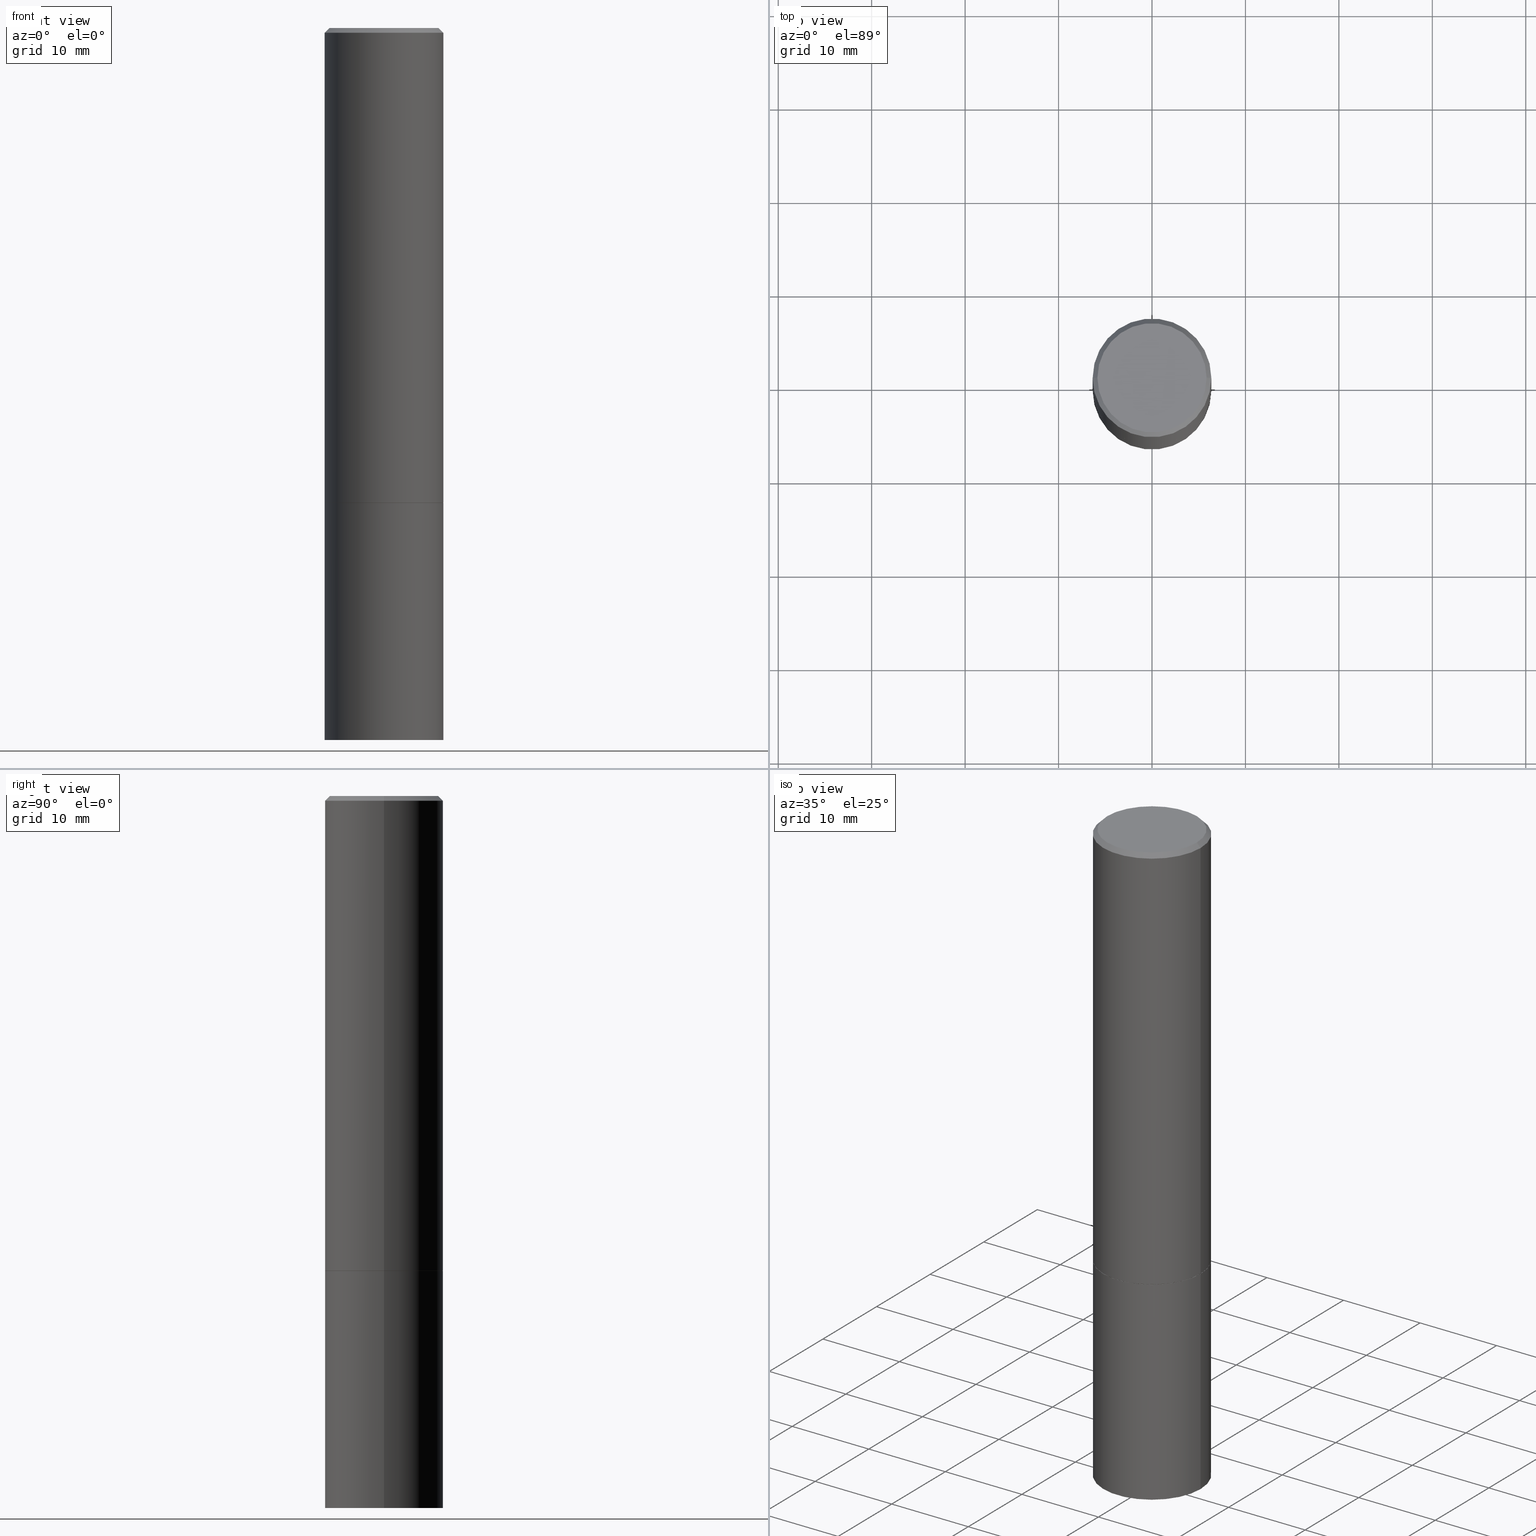
[diagram: canonical four-view strip — front | top / right | iso, engineering-drawing reading convention]
A machine part, canonical four-view strip (front | top / right | iso — engineering-drawing reading convention). The complete STEP part file that produces these views, byte-faithful:
ISO-10303-21;
HEADER;
FILE_DESCRIPTION (( 'STEP AP203' ),
    '1' );
FILE_NAME ('37036.STEP',
    '2024-02-27T20:16:14',
    ( '' ),
    ( '' ),
    'SwSTEP 2.0',
    'SolidWorks 2023',
    '' );
FILE_SCHEMA (( 'CONFIG_CONTROL_DESIGN' ));
ENDSEC;

DATA;
#1 = DATE_AND_TIME ( #139, #181 ) ;
#2 = EDGE_LOOP ( 'NONE', ( #289, #140, #249, #79 ) ) ;
#3 = CIRCLE ( 'NONE', #179, 0.2489999999999999991 ) ;
#4 = VERTEX_POINT ( 'NONE', #348 ) ;
#5 = CC_DESIGN_APPROVAL ( #56, ( #206 ) ) ;
#6 = ORIENTED_EDGE ( 'NONE', *, *, #43, .F. ) ;
#7 = ORIENTED_EDGE ( 'NONE', *, *, #291, .F. ) ;
#8 = EDGE_CURVE ( 'NONE', #4, #251, #41, .T. ) ;
#9 = EDGE_LOOP ( 'NONE', ( #346, #229 ) ) ;
#10 = DIRECTION ( 'NONE',  ( -2.445468806185136597E-29, 3.491481338843145583E-15, 1.000000000000000000 ) ) ;
#11 = EDGE_CURVE ( 'NONE', #251, #4, #3, .T. ) ;
#12 = CARTESIAN_POINT ( 'NONE',  ( -0.2299999999999996769, 1.640996229256270350E-15, 8.537024980189468815E-18 ) ) ;
#13 = EDGE_CURVE ( 'NONE', #311, #54, #95, .T. ) ;
#14 = CYLINDRICAL_SURFACE ( 'NONE', #127, 0.2499999999999998335 ) ;
#15 = AXIS2_PLACEMENT_3D ( 'NONE', #357, #148, #123 ) ;
#16 = LOCAL_TIME ( 15, 16, 14.00000000000000000, #246 ) ;
#17 = COORDINATED_UNIVERSAL_TIME_OFFSET ( 5, 0, .BEHIND. ) ;
#18 = DIRECTION ( 'NONE',  ( -0.7071067811865232589, 7.493145998870265808E-15, 0.7071067811865715536 ) ) ;
#19 = PERSON_AND_ORGANIZATION_ROLE ( 'classification_officer' ) ;
#20 = EDGE_CURVE ( 'NONE', #278, #284, #230, .T. ) ;
#21 = ORIENTED_EDGE ( 'NONE', *, *, #291, .T. ) ;
#22 = APPROVAL_ROLE ( '' ) ;
#23 = EDGE_LOOP ( 'NONE', ( #7, #143 ) ) ;
#24 = PERSON_AND_ORGANIZATION_ROLE ( 'design_supplier' ) ;
#25 = ORIENTED_EDGE ( 'NONE', *, *, #30, .F. ) ;
#26 = LINE ( 'NONE', #98, #207 ) ;
#27 =( GEOMETRIC_REPRESENTATION_CONTEXT ( 3 ) GLOBAL_UNCERTAINTY_ASSIGNED_CONTEXT ( ( #339 ) ) GLOBAL_UNIT_ASSIGNED_CONTEXT ( ( #263, #334, #247 ) ) REPRESENTATION_CONTEXT ( 'NONE', 'WORKASPACE' ) );
#28 = ORIENTED_EDGE ( 'NONE', *, *, #20, .F. ) ;
#29 = VERTEX_POINT ( 'NONE', #260 ) ;
#30 = EDGE_CURVE ( 'NONE', #311, #49, #39, .T. ) ;
#31 = EDGE_LOOP ( 'NONE', ( #25, #163, #231, #47 ) ) ;
#32 = AXIS2_PLACEMENT_3D ( 'NONE', #87, #293, #33 ) ;
#33 = DIRECTION ( 'NONE',  ( -1.000000000000000000, 6.982962677686265922E-15, -4.876176775795935793E-29 ) ) ;
#34 = DIRECTION ( 'NONE',  ( 1.000000000000000000, -6.982962677686266711E-15, 0.000000000000000000 ) ) ;
#35 = CARTESIAN_POINT ( 'NONE',  ( 0.2489999999999999991, -8.721720384430172617E-15, -2.000000000000000444 ) ) ;
#36 = FACE_OUTER_BOUND ( 'NONE', #142, .T. ) ;
#37 = EDGE_CURVE ( 'NONE', #144, #54, #113, .T. ) ;
#38 = DIRECTION ( 'NONE',  ( 1.000000000000000000, -6.982962677686266711E-15, 0.000000000000000000 ) ) ;
#39 = CIRCLE ( 'NONE', #161, 0.2299999999999996769 ) ;
#40 = DATE_AND_TIME ( #305, #202 ) ;
#41 = CIRCLE ( 'NONE', #252, 0.2489999999999999991 ) ;
#42 = FACE_OUTER_BOUND ( 'NONE', #170, .T. ) ;
#43 = EDGE_CURVE ( 'NONE', #166, #138, #126, .T. ) ;
#44 = APPROVAL_STATUS ( 'not_yet_approved' ) ;
#45 = COORDINATED_UNIVERSAL_TIME_OFFSET ( 5, 0, .BEHIND. ) ;
#46 = PERSON_AND_ORGANIZATION_ROLE ( 'design_owner' ) ;
#47 = ORIENTED_EDGE ( 'NONE', *, *, #273, .F. ) ;
#48 = DIMENSIONAL_EXPONENTS ( 1.000000000000000000, 0.000000000000000000, 0.000000000000000000, 0.000000000000000000, 0.000000000000000000, 0.000000000000000000, 0.000000000000000000 ) ;
#49 = VERTEX_POINT ( 'NONE', #12 ) ;
#50 = CARTESIAN_POINT ( 'NONE',  ( -2.087702828670439639E-46, 2.980686340760894400E-32, 8.537024980200822558E-18 ) ) ;
#51 = EDGE_LOOP ( 'NONE', ( #21, #115, #343, #313 ) ) ;
#52 = LOCAL_TIME ( 15, 16, 14.00000000000000000, #280 ) ;
#53 = ORIENTED_EDGE ( 'NONE', *, *, #149, .T. ) ;
#54 = VERTEX_POINT ( 'NONE', #116 ) ;
#55 = CYLINDRICAL_SURFACE ( 'NONE', #172, 0.2500000000000000000 ) ;
#56 = APPROVAL ( #164, 'UNSPECIFIED' ) ;
#57 = DIRECTION ( 'NONE',  ( -2.445468806185136597E-29, 3.491481338843145583E-15, 1.000000000000000000 ) ) ;
#58 = AXIS2_PLACEMENT_3D ( 'NONE', #180, #60, #174 ) ;
#59 = AXIS2_PLACEMENT_3D ( 'NONE', #50, #167, #285 ) ;
#60 = DIRECTION ( 'NONE',  ( -2.445468806185136597E-29, 3.491481338843145583E-15, 1.000000000000000000 ) ) ;
#61 = DIRECTION ( 'NONE',  ( -2.445468806185136597E-29, 3.491481338843145583E-15, 1.000000000000000000 ) ) ;
#62 = DIRECTION ( 'NONE',  ( 0.7071067811865466846, -7.319954787623252890E-15, -0.7071067811865483499 ) ) ;
#63 = CONICAL_SURFACE ( 'NONE', #88, 0.2499999999999996669, 0.7853981633974471688 ) ;
#64 = ADVANCED_FACE ( 'NONE', ( #208 ), #63, .T. ) ;
#65 = VECTOR ( 'NONE', #92, 39.37007874015748143 ) ;
#66 = CARTESIAN_POINT ( 'NONE',  ( 0.000000000000000000, 0.000000000000000000, 0.000000000000000000 ) ) ;
#67 = CARTESIAN_POINT ( 'NONE',  ( -0.2500000000000000000, -6.952346507707613689E-15, -2.000000000000000444 ) ) ;
#68 = DIRECTION ( 'NONE',  ( 1.000000000000000000, -6.982962677686266711E-15, 4.876176775795935793E-29 ) ) ;
#69 = CARTESIAN_POINT ( 'NONE',  ( -0.2489999999999999991, -5.213711265643642498E-15, -2.000000000000000444 ) ) ;
#70 = LENGTH_MEASURE_WITH_UNIT ( LENGTH_MEASURE( 0.02539999999999999897 ), #147 );
#71 = ADVANCED_FACE ( 'NONE', ( #122 ), #352, .T. ) ;
#72 = MECHANICAL_CONTEXT ( 'NONE', #196, 'mechanical' ) ;
#73 = ORGANIZATION ( 'UNSPECIFIED', 'UNSPECIFIED', '' ) ;
#74 = DATE_TIME_ROLE ( 'classification_date' ) ;
#75 = DIRECTION ( 'NONE',  ( 1.000000000000000000, -6.982962677686262766E-15, 0.000000000000000000 ) ) ;
#76 = ORIENTED_EDGE ( 'NONE', *, *, #248, .F. ) ;
#77 = PERSON_AND_ORGANIZATION ( #82, #73 ) ;
#78 = ADVANCED_FACE ( 'NONE', ( #205 ), #204, .F. ) ;
#79 = ORIENTED_EDGE ( 'NONE', *, *, #136, .F. ) ;
#80 = APPLICATION_PROTOCOL_DEFINITION ( 'international standard', 'config_control_design', 1994, #196 ) ;
#81 = VERTEX_POINT ( 'NONE', #350 ) ;
#82 = PERSON ( 'UNSPECIFIED', 'UNSPECIFIED', 'UNSPECIFIED', ('UNSPECIFIED'), ('UNSPECIFIED'), ('UNSPECIFIED') ) ;
#83 = ADVANCED_FACE ( 'NONE', ( #146 ), #55, .T. ) ;
#84 = ORIENTED_EDGE ( 'NONE', *, *, #37, .F. ) ;
#85 = CARTESIAN_POINT ( 'NONE',  ( 4.890937612370273754E-29, -6.982962677686291954E-15, -2.000000000000000444 ) ) ;
#86 = CARTESIAN_POINT ( 'NONE',  ( -2.087702828670439639E-46, 2.980686340760894400E-32, 8.537024980200822558E-18 ) ) ;
#87 = CARTESIAN_POINT ( 'NONE',  ( 1.606081415867838898E-15, 0.2299999999999996769, -7.987721954438218819E-16 ) ) ;
#88 = AXIS2_PLACEMENT_3D ( 'NONE', #89, #173, #268 ) ;
#89 = CARTESIAN_POINT ( 'NONE',  ( 4.890937612370281041E-31, -6.982962677686302702E-17, -0.02000000000000003511 ) ) ;
#90 = AXIS2_PLACEMENT_3D ( 'NONE', #176, #94, #68 ) ;
#91 = VECTOR ( 'NONE', #337, 39.37007874015748143 ) ;
#92 = DIRECTION ( 'NONE',  ( -2.445468806185136877E-29, 3.491481338843145188E-15, 1.000000000000000000 ) ) ;
#93 = DIRECTION ( 'NONE',  ( -2.445468806185136597E-29, 3.491481338843145583E-15, 1.000000000000000000 ) ) ;
#94 = DIRECTION ( 'NONE',  ( -2.445468806185136597E-29, 3.491481338843145583E-15, 1.000000000000000000 ) ) ;
#95 = LINE ( 'NONE', #235, #133 ) ;
#96 = EDGE_CURVE ( 'NONE', #138, #166, #342, .T. ) ;
#97 = MANIFOLD_SOLID_BREP ( 'Body-Move/Copy2[2]', #217 ) ;
#98 = CARTESIAN_POINT ( 'NONE',  ( -0.2499999999999996669, 1.675911042644701210E-15, -0.02000000000000003511 ) ) ;
#99 = DIRECTION ( 'NONE',  ( 2.445468806185136597E-29, -3.491481338843145583E-15, -1.000000000000000000 ) ) ;
#100 = LINE ( 'NONE', #244, #225 ) ;
#101 = PLANE ( 'NONE',  #254 ) ;
#102 = AXIS2_PLACEMENT_3D ( 'NONE', #242, #335, #75 ) ;
#103 = CARTESIAN_POINT ( 'NONE',  ( -0.2499999999999998335, 1.776356839400249281E-15, -1.229733772563725605E-29 ) ) ;
#104 = APPROVAL_ROLE ( '' ) ;
#105 = PERSON_AND_ORGANIZATION_ROLE ( 'creator' ) ;
#106 = EDGE_LOOP ( 'NONE', ( #286, #257 ) ) ;
#107 = DATE_AND_TIME ( #137, #52 ) ;
#108 = CIRCLE ( 'NONE', #154, 0.2500000000000000000 ) ;
#109 = AXIS2_PLACEMENT_3D ( 'NONE', #358, #209, #120 ) ;
#110 = EDGE_LOOP ( 'NONE', ( #199, #227, #258, #28 ) ) ;
#111 = ORIENTED_EDGE ( 'NONE', *, *, #20, .T. ) ;
#112 = ORIENTED_EDGE ( 'NONE', *, *, #160, .F. ) ;
#113 = CIRCLE ( 'NONE', #292, 0.2499999999999996669 ) ;
#114 = LOCAL_TIME ( 15, 16, 14.00000000000000000, #17 ) ;
#115 = ORIENTED_EDGE ( 'NONE', *, *, #233, .T. ) ;
#116 = CARTESIAN_POINT ( 'NONE',  ( 0.2499999999999996669, -1.784954126219743428E-15, -0.02000000000000003511 ) ) ;
#117 = DIRECTION ( 'NONE',  ( 1.000000000000000000, -6.982962677686266711E-15, 4.876176775795935793E-29 ) ) ;
#118 = CARTESIAN_POINT ( 'NONE',  ( 4.890937612370281041E-31, -6.982962677686302702E-17, -0.02000000000000003511 ) ) ;
#119 = CC_DESIGN_SECURITY_CLASSIFICATION ( #298, ( #141 ) ) ;
#120 = DIRECTION ( 'NONE',  ( 1.000000000000000000, -6.982962677686262766E-15, 0.000000000000000000 ) ) ;
#121 = APPROVAL ( #44, 'UNSPECIFIED' ) ;
#122 = FACE_OUTER_BOUND ( 'NONE', #23, .T. ) ;
#123 = DIRECTION ( 'NONE',  ( 1.000000000000000000, -6.982962677686266711E-15, 0.000000000000000000 ) ) ;
#124 = DIRECTION ( 'NONE',  ( -2.445468806185136597E-29, 3.491481338843145583E-15, 1.000000000000000000 ) ) ;
#125 = DIRECTION ( 'NONE',  ( 2.438088387897960049E-29, -3.491481338843145188E-15, -1.000000000000000000 ) ) ;
#126 = CIRCLE ( 'NONE', #194, 0.2500000000000000000 ) ;
#127 = AXIS2_PLACEMENT_3D ( 'NONE', #66, #183, #356 ) ;
#128 = FACE_OUTER_BOUND ( 'NONE', #200, .T. ) ;
#129 = CARTESIAN_POINT ( 'NONE',  ( -0.2500000000000000000, -1.748293572161902502E-15, -1.999000000000000110 ) ) ;
#130 = DATE_AND_TIME ( #157, #114 ) ;
#131 = DIRECTION ( 'NONE',  ( -2.445468806185136877E-29, 3.491481338843145188E-15, 1.000000000000000000 ) ) ;
#132 = PERSON_AND_ORGANIZATION ( #82, #73 ) ;
#133 = VECTOR ( 'NONE', #62, 39.37007874015748143 ) ;
#134 = PERSON_AND_ORGANIZATION ( #82, #73 ) ;
#135 = CIRCLE ( 'NONE', #327, 0.2499999999999996669 ) ;
#136 = EDGE_CURVE ( 'NONE', #251, #138, #299, .T. ) ;
#137 = CALENDAR_DATE ( 2024, 27, 2 ) ;
#138 = VERTEX_POINT ( 'NONE', #331 ) ;
#139 = CALENDAR_DATE ( 2024, 27, 2 ) ;
#140 = ORIENTED_EDGE ( 'NONE', *, *, #160, .T. ) ;
#141 = PRODUCT_DEFINITION_FORMATION_WITH_SPECIFIED_SOURCE ( 'ANY', '', #277, .NOT_KNOWN. ) ;
#142 = EDGE_LOOP ( 'NONE', ( #315, #255, #308, #76 ) ) ;
#143 = ORIENTED_EDGE ( 'NONE', *, *, #228, .F. ) ;
#144 = VERTEX_POINT ( 'NONE', #360 ) ;
#145 = DIRECTION ( 'NONE',  ( -2.445468806185136597E-29, 3.491481338843145583E-15, 1.000000000000000000 ) ) ;
#146 = FACE_OUTER_BOUND ( 'NONE', #110, .T. ) ;
#147 =( LENGTH_UNIT ( ) NAMED_UNIT ( * ) SI_UNIT ( $, .METRE. ) );
#148 = DIRECTION ( 'NONE',  ( -2.445468806185136597E-29, 3.491481338843145583E-15, 1.000000000000000000 ) ) ;
#149 = EDGE_CURVE ( 'NONE', #284, #278, #108, .T. ) ;
#150 = CONICAL_SURFACE ( 'NONE', #214, 0.2499999999999996669, 0.7853981633974471688 ) ;
#151 = DIRECTION ( 'NONE',  ( -2.445468806185136597E-29, 3.491481338843145583E-15, 1.000000000000000000 ) ) ;
#152 = CARTESIAN_POINT ( 'NONE',  ( 4.888492143564088712E-29, -6.979471196347448158E-15, -1.999000000000000110 ) ) ;
#153 = CARTESIAN_POINT ( 'NONE',  ( 4.890937612370273754E-29, -6.982962677686291954E-15, -2.000000000000000444 ) ) ;
#154 = AXIS2_PLACEMENT_3D ( 'NONE', #186, #245, #304 ) ;
#155 = APPROVAL_DATE_TIME ( #1, #56 ) ;
#156 = LINE ( 'NONE', #69, #265 ) ;
#157 = CALENDAR_DATE ( 2024, 27, 2 ) ;
#158 = PRODUCT_DEFINITION_SHAPE ( 'NONE', 'NONE',  #206 ) ;
#159 = PERSON_AND_ORGANIZATION ( #82, #73 ) ;
#160 = EDGE_CURVE ( 'NONE', #4, #166, #156, .T. ) ;
#161 = AXIS2_PLACEMENT_3D ( 'NONE', #86, #93, #321 ) ;
#162 = COORDINATED_UNIVERSAL_TIME_OFFSET ( 5, 0, .BEHIND. ) ;
#163 = ORIENTED_EDGE ( 'NONE', *, *, #13, .T. ) ;
#164 = APPROVAL_STATUS ( 'not_yet_approved' ) ;
#165 = CC_DESIGN_DATE_AND_TIME_ASSIGNMENT ( #250, #74, ( #298 ) ) ;
#166 = VERTEX_POINT ( 'NONE', #129 ) ;
#167 = DIRECTION ( 'NONE',  ( -2.445468806185136597E-29, 3.491481338843145583E-15, 1.000000000000000000 ) ) ;
#168 = ORIENTED_EDGE ( 'NONE', *, *, #273, .T. ) ;
#169 = ORIENTED_EDGE ( 'NONE', *, *, #13, .F. ) ;
#170 = EDGE_LOOP ( 'NONE', ( #53, #111 ) ) ;
#171 = CARTESIAN_POINT ( 'NONE',  ( 0.000000000000000000, 0.000000000000000000, 0.000000000000000000 ) ) ;
#172 = AXIS2_PLACEMENT_3D ( 'NONE', #171, #262, #319 ) ;
#173 = DIRECTION ( 'NONE',  ( 2.445468806185136597E-29, -3.491481338843145583E-15, -1.000000000000000000 ) ) ;
#174 = DIRECTION ( 'NONE',  ( 1.000000000000000000, -6.982962677686266711E-15, 0.000000000000000000 ) ) ;
#175 = ADVANCED_FACE ( 'NONE', ( #42 ), #101, .F. ) ;
#176 = CARTESIAN_POINT ( 'NONE',  ( 0.000000000000000000, 0.000000000000000000, 0.000000000000000000 ) ) ;
#177 = DIRECTION ( 'NONE',  ( 1.000000000000000000, -6.982962677686266711E-15, 0.000000000000000000 ) ) ;
#178 = CYLINDRICAL_SURFACE ( 'NONE', #90, 0.2499999999999998335 ) ;
#179 = AXIS2_PLACEMENT_3D ( 'NONE', #355, #10, #294 ) ;
#180 = CARTESIAN_POINT ( 'NONE',  ( 4.888492143564088712E-29, -6.979471196347448158E-15, -1.999000000000000110 ) ) ;
#181 = LOCAL_TIME ( 15, 16, 14.00000000000000000, #162 ) ;
#182 = ADVANCED_BREP_SHAPE_REPRESENTATION ( '37036', ( #234, #97, #365 ), #27 ) ;
#183 = DIRECTION ( 'NONE',  ( -2.445468806185136597E-29, 3.491481338843145583E-15, 1.000000000000000000 ) ) ;
#184 = LINE ( 'NONE', #301, #65 ) ;
#185 = DIRECTION ( 'NONE',  ( -2.445468806185136597E-29, 3.491481338843145583E-15, 1.000000000000000000 ) ) ;
#186 = CARTESIAN_POINT ( 'NONE',  ( 4.890937612370273754E-29, -6.982962677686291954E-15, -2.000000000000000444 ) ) ;
#187 = CARTESIAN_POINT ( 'NONE',  ( 4.890937612370281041E-31, -6.982962677686302702E-17, -0.02000000000000003511 ) ) ;
#188 = AXIS2_PLACEMENT_3D ( 'NONE', #326, #237, #320 ) ;
#189 = PERSON_AND_ORGANIZATION ( #82, #73 ) ;
#190 = EDGE_CURVE ( 'NONE', #166, #144, #328, .T. ) ;
#191 = CARTESIAN_POINT ( 'NONE',  ( 0.2489999999999999991, -8.721720384430172617E-15, -2.000000000000000444 ) ) ;
#192 = APPROVAL_DATE_TIME ( #107, #198 ) ;
#193 = EDGE_LOOP ( 'NONE', ( #223, #203, #312, #84 ) ) ;
#194 = AXIS2_PLACEMENT_3D ( 'NONE', #152, #57, #177 ) ;
#195 = APPROVAL_DATE_TIME ( #130, #121 ) ;
#196 = APPLICATION_CONTEXT ( 'configuration controlled 3d designs of mechanical parts and assemblies' ) ;
#197 = VECTOR ( 'NONE', #131, 39.37007874015748143 ) ;
#198 = APPROVAL ( #279, 'UNSPECIFIED' ) ;
#199 = ORIENTED_EDGE ( 'NONE', *, *, #233, .F. ) ;
#200 = EDGE_LOOP ( 'NONE', ( #169, #282, #168, #290 ) ) ;
#201 = EDGE_LOOP ( 'NONE', ( #112, #347, #226, #6 ) ) ;
#202 = LOCAL_TIME ( 15, 16, 14.00000000000000000, #45 ) ;
#203 = ORIENTED_EDGE ( 'NONE', *, *, #43, .T. ) ;
#204 = PLANE ( 'NONE',  #32 ) ;
#205 = FACE_OUTER_BOUND ( 'NONE', #9, .T. ) ;
#206 = PRODUCT_DEFINITION ( 'UNKNOWN', '', #141, #323 ) ;
#207 = VECTOR ( 'NONE', #213, 39.37007874015748143 ) ;
#208 = FACE_OUTER_BOUND ( 'NONE', #31, .T. ) ;
#209 = DIRECTION ( 'NONE',  ( -2.445468806185136597E-29, 3.491481338843145583E-15, 1.000000000000000000 ) ) ;
#210 = FACE_OUTER_BOUND ( 'NONE', #201, .T. ) ;
#211 = CARTESIAN_POINT ( 'NONE',  ( 1.745740669421639647E-15, 0.2499999999999895084, -3.000000000000001332 ) ) ;
#212 = PLANE ( 'NONE',  #188 ) ;
#213 = DIRECTION ( 'NONE',  ( -0.7071067811865466846, 2.468850131082247989E-15, -0.7071067811865483499 ) ) ;
#214 = AXIS2_PLACEMENT_3D ( 'NONE', #187, #99, #215 ) ;
#215 = DIRECTION ( 'NONE',  ( -1.000000000000000000, 6.982962677686266711E-15, 0.000000000000000000 ) ) ;
#216 = CARTESIAN_POINT ( 'NONE',  ( 0.2299999999999996769, -1.681434332853596842E-15, 8.537024980212318048E-18 ) ) ;
#217 = CLOSED_SHELL ( 'NONE', ( #330, #316, #64, #345, #307, #322, #295, #78 ) ) ;
#218 = CIRCLE ( 'NONE', #109, 0.2500000000000000000 ) ;
#219 = PERSON_AND_ORGANIZATION_ROLE ( 'creator' ) ;
#220 = CARTESIAN_POINT ( 'NONE',  ( 0.2499999999999998335, -1.745740669421565494E-15, 1.219044193948983107E-29 ) ) ;
#221 = PERSON_AND_ORGANIZATION ( #82, #73 ) ;
#222 = SECURITY_CLASSIFICATION_LEVEL ( 'unclassified' ) ;
#223 = ORIENTED_EDGE ( 'NONE', *, *, #190, .F. ) ;
#224 = DIRECTION ( 'NONE',  ( 1.000000000000000000, 0.000000000000000000, 0.000000000000000000 ) ) ;
#225 = VECTOR ( 'NONE', #362, 39.37007874015748143 ) ;
#226 = ORIENTED_EDGE ( 'NONE', *, *, #136, .T. ) ;
#227 = ORIENTED_EDGE ( 'NONE', *, *, #228, .T. ) ;
#228 = EDGE_CURVE ( 'NONE', #29, #81, #272, .T. ) ;
#229 = ORIENTED_EDGE ( 'NONE', *, *, #30, .T. ) ;
#230 = CIRCLE ( 'NONE', #15, 0.2500000000000000000 ) ;
#231 = ORIENTED_EDGE ( 'NONE', *, *, #354, .T. ) ;
#232 = DIRECTION ( 'NONE',  ( 1.000000000000000000, -6.982962677686266711E-15, 0.000000000000000000 ) ) ;
#233 = EDGE_CURVE ( 'NONE', #29, #278, #100, .T. ) ;
#234 = MANIFOLD_SOLID_BREP ( 'Body-Move/Copy2[1]', #297 ) ;
#235 = CARTESIAN_POINT ( 'NONE',  ( 0.2499999999999996669, -1.784954126219743428E-15, -0.02000000000000003511 ) ) ;
#236 = AXIS2_PLACEMENT_3D ( 'NONE', #240, #359, #34 ) ;
#237 = DIRECTION ( 'NONE',  ( -2.438088387897960049E-29, 3.491481338843145188E-15, 1.000000000000000000 ) ) ;
#238 = DIRECTION ( 'NONE',  ( 2.438088387897960049E-29, -3.491481338843145188E-15, -1.000000000000000000 ) ) ;
#239 = CARTESIAN_POINT ( 'NONE',  ( 0.2500000000000000000, -8.728703347107858632E-15, -2.000000000000000444 ) ) ;
#240 = CARTESIAN_POINT ( 'NONE',  ( 4.890937612370273754E-29, -6.982962677686291954E-15, -2.000000000000000444 ) ) ;
#241 = DIRECTION ( 'NONE',  ( 1.000000000000000000, -6.982962677686266711E-15, 0.000000000000000000 ) ) ;
#242 = CARTESIAN_POINT ( 'NONE',  ( 7.336406418555409790E-29, -1.047444401652943635E-14, -3.000000000000000444 ) ) ;
#243 = CC_DESIGN_DATE_AND_TIME_ASSIGNMENT ( #40, #274, ( #206 ) ) ;
#244 = CARTESIAN_POINT ( 'NONE',  ( -0.2500000000000000000, 1.776356839400250465E-15, -1.229733772563726445E-29 ) ) ;
#245 = DIRECTION ( 'NONE',  ( -2.445468806185136597E-29, 3.491481338843145583E-15, 1.000000000000000000 ) ) ;
#246 = COORDINATED_UNIVERSAL_TIME_OFFSET ( 5, 0, .BEHIND. ) ;
#247 =( NAMED_UNIT ( * ) SI_UNIT ( $, .STERADIAN. ) SOLID_ANGLE_UNIT ( ) );
#248 = EDGE_CURVE ( 'NONE', #138, #54, #306, .T. ) ;
#249 = ORIENTED_EDGE ( 'NONE', *, *, #96, .F. ) ;
#250 = DATE_AND_TIME ( #336, #16 ) ;
#251 = VERTEX_POINT ( 'NONE', #191 ) ;
#252 = AXIS2_PLACEMENT_3D ( 'NONE', #85, #145, #232 ) ;
#253 = CIRCLE ( 'NONE', #59, 0.2299999999999996769 ) ;
#254 = AXIS2_PLACEMENT_3D ( 'NONE', #366, #125, #275 ) ;
#255 = ORIENTED_EDGE ( 'NONE', *, *, #190, .T. ) ;
#256 = CC_DESIGN_PERSON_AND_ORGANIZATION_ASSIGNMENT ( #189, #219, ( #206 ) ) ;
#257 = ORIENTED_EDGE ( 'NONE', *, *, #8, .F. ) ;
#258 = ORIENTED_EDGE ( 'NONE', *, *, #281, .T. ) ;
#259 = APPROVAL_PERSON_ORGANIZATION ( #134, #56, #104 ) ;
#260 = CARTESIAN_POINT ( 'NONE',  ( -0.2500000000000000000, -6.952346507707613689E-15, -3.000000000000000444 ) ) ;
#261 = EDGE_CURVE ( 'NONE', #49, #311, #253, .T. ) ;
#262 = DIRECTION ( 'NONE',  ( -2.445468806185136597E-29, 3.491481338843145583E-15, 1.000000000000000000 ) ) ;
#263 =( CONVERSION_BASED_UNIT ( 'INCH', #70 ) LENGTH_UNIT ( ) NAMED_UNIT ( #48 ) );
#264 = AXIS2_PLACEMENT_3D ( 'NONE', #211, #238, #325 ) ;
#265 = VECTOR ( 'NONE', #18, 39.37007874015748854 ) ;
#266 = CYLINDRICAL_SURFACE ( 'NONE', #349, 0.2500000000000000000 ) ;
#267 = PRODUCT_RELATED_PRODUCT_CATEGORY ( 'detail', '', ( #277 ) ) ;
#268 = DIRECTION ( 'NONE',  ( -1.000000000000000000, 6.982962677686266711E-15, 0.000000000000000000 ) ) ;
#269 = FACE_OUTER_BOUND ( 'NONE', #2, .T. ) ;
#270 = CARTESIAN_POINT ( 'NONE',  ( 0.000000000000000000, 0.000000000000000000, 0.000000000000000000 ) ) ;
#271 = VECTOR ( 'NONE', #333, 39.37007874015748854 ) ;
#272 = CIRCLE ( 'NONE', #102, 0.2500000000000000000 ) ;
#273 = EDGE_CURVE ( 'NONE', #49, #144, #26, .T. ) ;
#274 = DATE_TIME_ROLE ( 'creation_date' ) ;
#275 = DIRECTION ( 'NONE',  ( -1.000000000000000000, 6.982962677686265922E-15, -4.876176775795935793E-29 ) ) ;
#276 = PERSON_AND_ORGANIZATION ( #82, #73 ) ;
#277 = PRODUCT ( '37036', '37036', '', ( #72 ) ) ;
#278 = VERTEX_POINT ( 'NONE', #67 ) ;
#279 = APPROVAL_STATUS ( 'not_yet_approved' ) ;
#280 = COORDINATED_UNIVERSAL_TIME_OFFSET ( 5, 0, .BEHIND. ) ;
#281 = EDGE_CURVE ( 'NONE', #81, #284, #184, .T. ) ;
#282 = ORIENTED_EDGE ( 'NONE', *, *, #261, .F. ) ;
#283 = APPLICATION_PROTOCOL_DEFINITION ( 'international standard', 'config_control_design', 1994, #332 ) ;
#284 = VERTEX_POINT ( 'NONE', #239 ) ;
#285 = DIRECTION ( 'NONE',  ( 1.000000000000000000, -6.982962677686266711E-15, 4.875813741439106500E-29 ) ) ;
#286 = ORIENTED_EDGE ( 'NONE', *, *, #11, .F. ) ;
#287 = ADVANCED_FACE ( 'NONE', ( #296 ), #266, .T. ) ;
#288 = CC_DESIGN_APPROVAL ( #121, ( #141 ) ) ;
#289 = ORIENTED_EDGE ( 'NONE', *, *, #11, .T. ) ;
#290 = ORIENTED_EDGE ( 'NONE', *, *, #37, .T. ) ;
#291 = EDGE_CURVE ( 'NONE', #81, #29, #218, .T. ) ;
#292 = AXIS2_PLACEMENT_3D ( 'NONE', #118, #61, #317 ) ;
#293 = DIRECTION ( 'NONE',  ( 2.438088387897960049E-29, -3.491481338843145188E-15, -1.000000000000000000 ) ) ;
#294 = DIRECTION ( 'NONE',  ( 1.000000000000000000, -6.982962677686266711E-15, 0.000000000000000000 ) ) ;
#295 = ADVANCED_FACE ( 'NONE', ( #300 ), #212, .F. ) ;
#296 = FACE_OUTER_BOUND ( 'NONE', #51, .T. ) ;
#297 = CLOSED_SHELL ( 'NONE', ( #287, #71, #175, #83 ) ) ;
#298 = SECURITY_CLASSIFICATION ( '', '', #222 ) ;
#299 = LINE ( 'NONE', #35, #271 ) ;
#300 = FACE_OUTER_BOUND ( 'NONE', #106, .T. ) ;
#301 = CARTESIAN_POINT ( 'NONE',  ( 0.2500000000000000000, -1.745740669421566678E-15, 1.219044193948983948E-29 ) ) ;
#302 = CC_DESIGN_PERSON_AND_ORGANIZATION_ASSIGNMENT ( #132, #105, ( #141 ) ) ;
#303 = CONICAL_SURFACE ( 'NONE', #236, 0.2489999999999999991, 0.7853981633974141952 ) ;
#304 = DIRECTION ( 'NONE',  ( 1.000000000000000000, -6.982962677686266711E-15, 0.000000000000000000 ) ) ;
#305 = CALENDAR_DATE ( 2024, 27, 2 ) ;
#306 = LINE ( 'NONE', #220, #91 ) ;
#307 = ADVANCED_FACE ( 'NONE', ( #324 ), #14, .T. ) ;
#308 = ORIENTED_EDGE ( 'NONE', *, *, #354, .F. ) ;
#309 = CC_DESIGN_APPROVAL ( #198, ( #298 ) ) ;
#310 = DIRECTION ( 'NONE',  ( 0.000000000000000000, 0.000000000000000000, 1.000000000000000000 ) ) ;
#311 = VERTEX_POINT ( 'NONE', #216 ) ;
#312 = ORIENTED_EDGE ( 'NONE', *, *, #248, .T. ) ;
#313 = ORIENTED_EDGE ( 'NONE', *, *, #281, .F. ) ;
#314 = AXIS2_PLACEMENT_3D ( 'NONE', #153, #124, #241 ) ;
#315 = ORIENTED_EDGE ( 'NONE', *, *, #96, .T. ) ;
#316 = ADVANCED_FACE ( 'NONE', ( #36 ), #178, .T. ) ;
#317 = DIRECTION ( 'NONE',  ( 1.000000000000000000, -6.982962677686266711E-15, 0.000000000000000000 ) ) ;
#318 = CONICAL_SURFACE ( 'NONE', #314, 0.2489999999999999991, 0.7853981633974141952 ) ;
#319 = DIRECTION ( 'NONE',  ( 1.000000000000000000, -6.982962677686266711E-15, 4.876176775795935793E-29 ) ) ;
#320 = DIRECTION ( 'NONE',  ( 1.000000000000000000, -6.982962677686265922E-15, 4.876176775795935793E-29 ) ) ;
#321 = DIRECTION ( 'NONE',  ( 1.000000000000000000, -6.982962677686266711E-15, 4.875813741439106500E-29 ) ) ;
#322 = ADVANCED_FACE ( 'NONE', ( #210 ), #318, .T. ) ;
#323 = DESIGN_CONTEXT ( 'detailed design', #332, 'design' ) ;
#324 = FACE_OUTER_BOUND ( 'NONE', #193, .T. ) ;
#325 = DIRECTION ( 'NONE',  ( -1.000000000000000000, 6.982962677686265922E-15, -4.876176775795935793E-29 ) ) ;
#326 = CARTESIAN_POINT ( 'NONE',  ( 4.890937612370273754E-29, -6.982962677686291954E-15, -2.000000000000000444 ) ) ;
#327 = AXIS2_PLACEMENT_3D ( 'NONE', #329, #185, #38 ) ;
#328 = LINE ( 'NONE', #103, #197 ) ;
#329 = CARTESIAN_POINT ( 'NONE',  ( 4.890937612370281041E-31, -6.982962677686302702E-17, -0.02000000000000003511 ) ) ;
#330 = ADVANCED_FACE ( 'NONE', ( #269 ), #303, .T. ) ;
#331 = CARTESIAN_POINT ( 'NONE',  ( 0.2500000000000000000, -8.725211865769015625E-15, -1.999000000000000110 ) ) ;
#332 = APPLICATION_CONTEXT ( 'configuration controlled 3d designs of mechanical parts and assemblies' ) ;
#333 = DIRECTION ( 'NONE',  ( 0.7071067811865232589, -2.468850131082003836E-15, 0.7071067811865715536 ) ) ;
#334 =( NAMED_UNIT ( * ) PLANE_ANGLE_UNIT ( ) SI_UNIT ( $, .RADIAN. ) );
#335 = DIRECTION ( 'NONE',  ( -2.445468806185136597E-29, 3.491481338843145583E-15, 1.000000000000000000 ) ) ;
#336 = CALENDAR_DATE ( 2024, 27, 2 ) ;
#337 = DIRECTION ( 'NONE',  ( -2.445468806185136877E-29, 3.491481338843145188E-15, 1.000000000000000000 ) ) ;
#338 = CC_DESIGN_PERSON_AND_ORGANIZATION_ASSIGNMENT ( #77, #46, ( #277 ) ) ;
#339 = UNCERTAINTY_MEASURE_WITH_UNIT (LENGTH_MEASURE( 1.000000000000000082E-05 ), #263, 'distance_accuracy_value', 'NONE');
#340 = APPROVAL_ROLE ( '' ) ;
#341 = SHAPE_DEFINITION_REPRESENTATION ( #158, #182 ) ;
#342 = CIRCLE ( 'NONE', #58, 0.2500000000000000000 ) ;
#343 = ORIENTED_EDGE ( 'NONE', *, *, #149, .F. ) ;
#344 = APPROVAL_PERSON_ORGANIZATION ( #159, #198, #340 ) ;
#345 = ADVANCED_FACE ( 'NONE', ( #128 ), #150, .T. ) ;
#346 = ORIENTED_EDGE ( 'NONE', *, *, #261, .T. ) ;
#347 = ORIENTED_EDGE ( 'NONE', *, *, #8, .T. ) ;
#348 = CARTESIAN_POINT ( 'NONE',  ( -0.2489999999999999991, -5.208412811295420884E-15, -2.000000000000000444 ) ) ;
#349 = AXIS2_PLACEMENT_3D ( 'NONE', #270, #151, #117 ) ;
#350 = CARTESIAN_POINT ( 'NONE',  ( 0.2500000000000000000, -1.222018468595100303E-14, -3.000000000000000444 ) ) ;
#351 = CC_DESIGN_PERSON_AND_ORGANIZATION_ASSIGNMENT ( #361, #24, ( #141 ) ) ;
#352 = PLANE ( 'NONE',  #264 ) ;
#353 = APPROVAL_PERSON_ORGANIZATION ( #221, #121, #22 ) ;
#354 = EDGE_CURVE ( 'NONE', #54, #144, #135, .T. ) ;
#355 = CARTESIAN_POINT ( 'NONE',  ( 4.890937612370273754E-29, -6.982962677686291954E-15, -2.000000000000000444 ) ) ;
#356 = DIRECTION ( 'NONE',  ( 1.000000000000000000, -6.982962677686266711E-15, 4.876176775795935793E-29 ) ) ;
#357 = CARTESIAN_POINT ( 'NONE',  ( 4.890937612370273754E-29, -6.982962677686291954E-15, -2.000000000000000444 ) ) ;
#358 = CARTESIAN_POINT ( 'NONE',  ( 7.336406418555409790E-29, -1.047444401652943635E-14, -3.000000000000000444 ) ) ;
#359 = DIRECTION ( 'NONE',  ( -2.445468806185136597E-29, 3.491481338843145583E-15, 1.000000000000000000 ) ) ;
#360 = CARTESIAN_POINT ( 'NONE',  ( -0.2499999999999996669, 1.675911042644701210E-15, -0.02000000000000003511 ) ) ;
#361 = PERSON_AND_ORGANIZATION ( #82, #73 ) ;
#362 = DIRECTION ( 'NONE',  ( -2.445468806185136877E-29, 3.491481338843145188E-15, 1.000000000000000000 ) ) ;
#363 = CARTESIAN_POINT ( 'NONE',  ( 0.000000000000000000, 0.000000000000000000, 0.000000000000000000 ) ) ;
#364 = CC_DESIGN_PERSON_AND_ORGANIZATION_ASSIGNMENT ( #276, #19, ( #298 ) ) ;
#365 = AXIS2_PLACEMENT_3D ( 'NONE', #363, #310, #224 ) ;
#366 = CARTESIAN_POINT ( 'NONE',  ( 1.745740669421615390E-15, 0.2499999999999930334, -2.000000000000000888 ) ) ;
ENDSEC;
END-ISO-10303-21;
